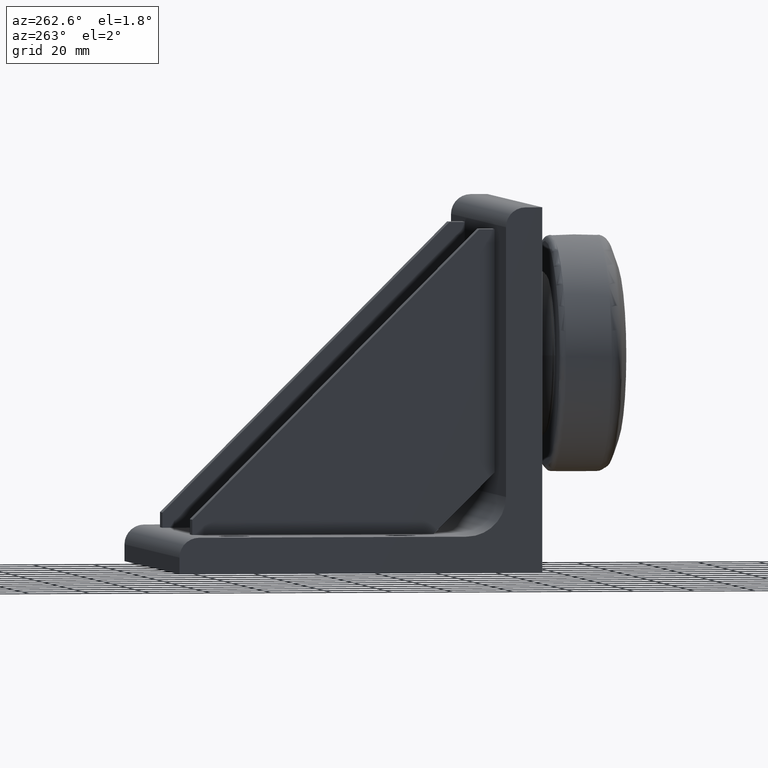
[diagram: clean part render]
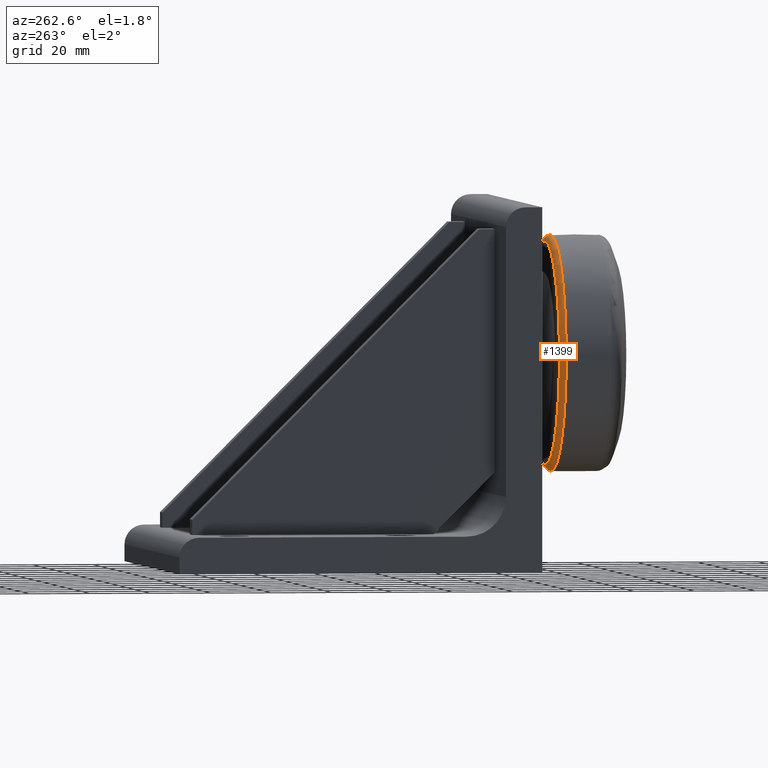
[diagram: same view with one face highlighted and labeled with its STEP entity id]
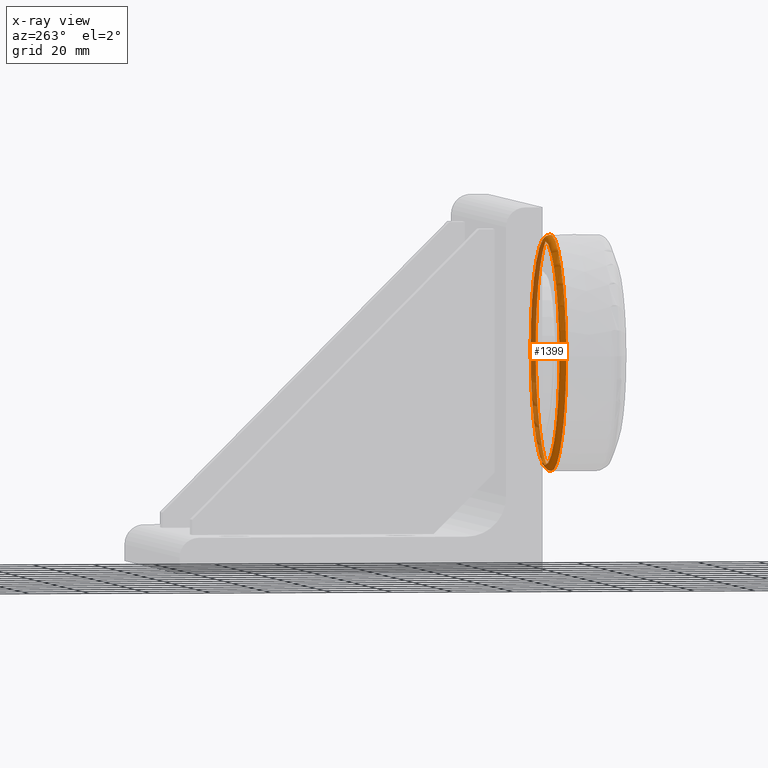
[diagram: x-ray of the same camera — body ghosted, the highlighted face saturated]
A machine part, auxiliary view. The second image highlights one B-rep face of the part: STEP entity #1399.
The next image is the same camera in x-ray: the body ghosted, the highlighted face saturated — about 38% of this face is hidden behind the body in this view.
In plain terms, the highlighted toroidal blend (fillet) surface has major radius 36.7853 mm and minor (blend) radius 2 mm.
Its self-contained STEP definition (entity closure, byte-faithful):
#17=TOROIDAL_SURFACE('',#1532,36.7853480086821,2.);
#74=CIRCLE('',#1517,36.7853480086821);
#75=CIRCLE('',#1518,36.7853480086821);
#84=CIRCLE('',#1529,38.7851627594232);
#85=CIRCLE('',#1530,38.7851627594232);
#86=CIRCLE('',#1533,2.);
#176=FACE_OUTER_BOUND('',#265,.T.);
#265=EDGE_LOOP('',(#1097,#1098,#1099,#1100,#1101,#1102));
#637=VERTEX_POINT('',#2205);
#638=VERTEX_POINT('',#2206);
#645=VERTEX_POINT('',#2251);
#646=VERTEX_POINT('',#2253);
#800=EDGE_CURVE('',#637,#638,#74,.T.);
#801=EDGE_CURVE('',#638,#637,#75,.T.);
#810=EDGE_CURVE('',#646,#645,#84,.T.);
#811=EDGE_CURVE('',#645,#646,#85,.T.);
#813=EDGE_CURVE('',#645,#638,#86,.T.);
#1097=ORIENTED_EDGE('',*,*,#810,.T.);
#1098=ORIENTED_EDGE('',*,*,#813,.T.);
#1099=ORIENTED_EDGE('',*,*,#801,.T.);
#1100=ORIENTED_EDGE('',*,*,#800,.T.);
#1101=ORIENTED_EDGE('',*,*,#813,.F.);
#1102=ORIENTED_EDGE('',*,*,#811,.T.);
#1399=ADVANCED_FACE('',(#176),#17,.T.);
#1517=AXIS2_PLACEMENT_3D('',#2207,#1788,#1789);
#1518=AXIS2_PLACEMENT_3D('',#2208,#1790,#1791);
#1529=AXIS2_PLACEMENT_3D('',#2254,#1812,#1813);
#1530=AXIS2_PLACEMENT_3D('',#2255,#1814,#1815);
#1532=AXIS2_PLACEMENT_3D('',#2258,#1819,#1820);
#1533=AXIS2_PLACEMENT_3D('',#2259,#1821,#1822);
#1788=DIRECTION('center_axis',(-2.44929359829471E-16,-1.,-1.82724206136224E-16));
#1789=DIRECTION('ref_axis',(1.,-2.44929359829471E-16,-3.05184841518462E-16));
#1790=DIRECTION('center_axis',(-2.44929359829471E-16,-1.,-1.82724206136224E-16));
#1791=DIRECTION('ref_axis',(1.,-2.44929359829471E-16,-3.05184841518462E-16));
#1812=DIRECTION('center_axis',(2.44929359829471E-16,1.,1.82724206136224E-16));
#1813=DIRECTION('ref_axis',(1.,-2.36964446901576E-16,-3.05184841518461E-16));
#1814=DIRECTION('center_axis',(2.44929359829471E-16,1.,1.82724206136224E-16));
#1815=DIRECTION('ref_axis',(1.,-2.36964446901576E-16,-3.05184841518461E-16));
#1819=DIRECTION('center_axis',(-2.44929359829471E-16,-1.,-1.82724206136224E-16));
#1820=DIRECTION('ref_axis',(0.,-1.83198752168228E-16,1.));
#1821=DIRECTION('center_axis',(1.,-2.44929359829471E-16,-4.20663310219892E-32));
#1822=DIRECTION('ref_axis',(0.,1.71748830157713E-16,-1.));
#2205=CARTESIAN_POINT('',(33.214651991318,-10.,70.));
#2206=CARTESIAN_POINT('',(70.,-10.,33.214651991318));
#2207=CARTESIAN_POINT('Origin',(70.,-10.,70.));
#2208=CARTESIAN_POINT('Origin',(70.,-10.,70.));
#2251=CARTESIAN_POINT('',(70.,-11.9727793696275,31.2148372405768));
#2253=CARTESIAN_POINT('',(31.2148372405768,-11.9727793696275,70.));
#2254=CARTESIAN_POINT('Origin',(70.,-11.9727793696275,70.));
#2255=CARTESIAN_POINT('Origin',(70.,-11.9727793696275,70.));
#2258=CARTESIAN_POINT('Origin',(70.,-12.,70.));
#2259=CARTESIAN_POINT('Origin',(70.,-12.,33.214651991318));